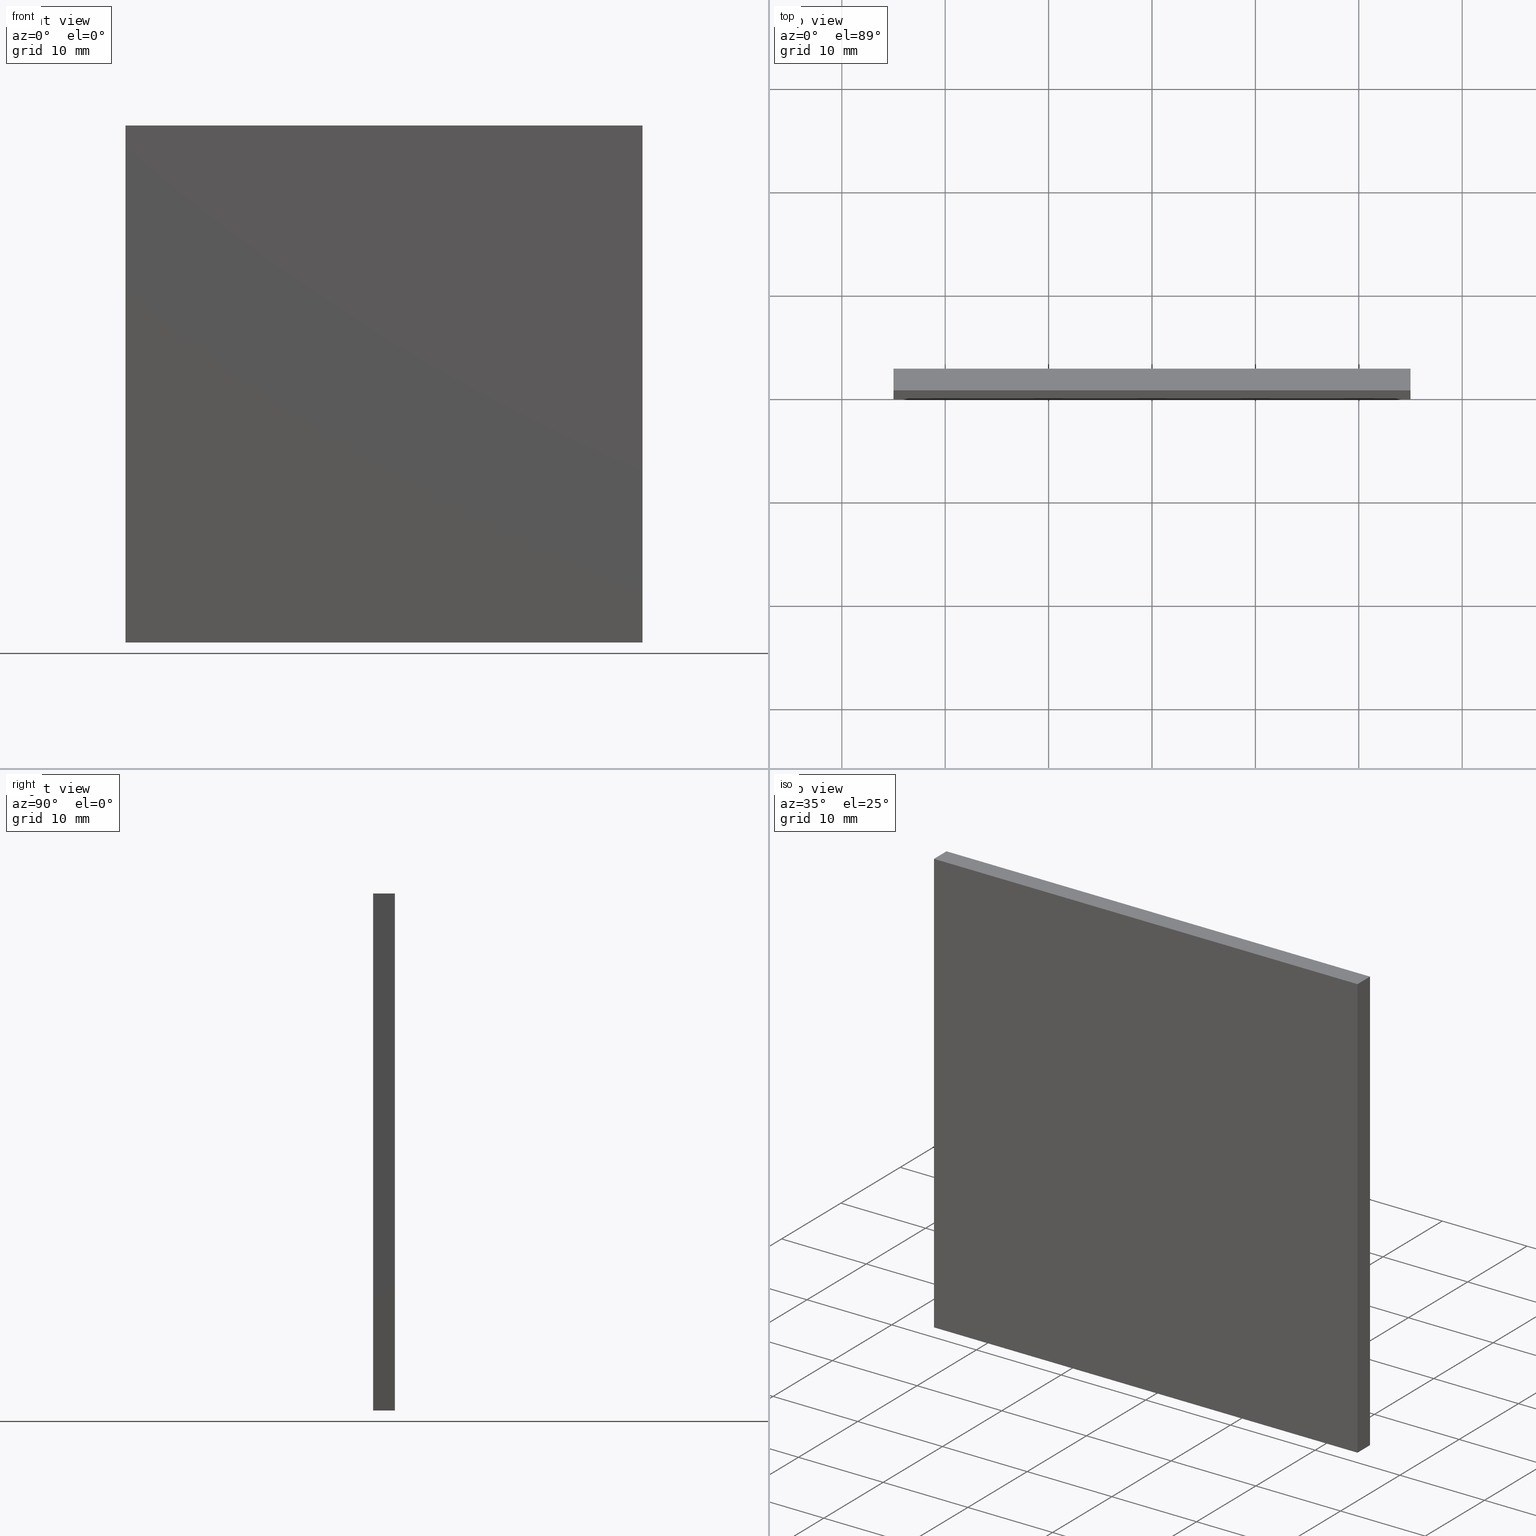
[diagram: canonical four-view strip — front | top / right | iso, engineering-drawing reading convention]
A machine part, canonical four-view strip (front | top / right | iso — engineering-drawing reading convention). The complete STEP part file that produces these views, byte-faithful:
ISO-10303-21;
HEADER;
FILE_DESCRIPTION (( 'STEP AP214' ),
    '1' );
FILE_NAME ('248614.STEP',
    '2019-08-06T06:35:41',
    ( 'user' ),
    ( '΢���й�' ),
    'SwSTEP 2.0',
    'SolidWorks 2016',
    '' );
FILE_SCHEMA (( 'AUTOMOTIVE_DESIGN' ));
ENDSEC;

DATA;
#1 = APPLICATION_CONTEXT ( 'automotive_design' ) ;
#2 = PRODUCT_DEFINITION_SHAPE ( 'NONE', 'NONE',  #8 ) ;
#3 = VECTOR ( 'NONE', #15, 1000.000000000000000 ) ;
#4 = ORIENTED_EDGE ( 'NONE', *, *, #66, .T. ) ;
#5 = CARTESIAN_POINT ( 'NONE',  ( 25.00000000000000400, 2.109999999999999900, -25.00000000000000400 ) ) ;
#6 = ADVANCED_FACE ( 'NONE', ( #193 ), #197, .F. ) ;
#7 =( GEOMETRIC_REPRESENTATION_CONTEXT ( 3 ) GLOBAL_UNCERTAINTY_ASSIGNED_CONTEXT ( ( #195 ) ) GLOBAL_UNIT_ASSIGNED_CONTEXT ( ( #33, #46, #199 ) ) REPRESENTATION_CONTEXT ( 'NONE', 'WORKASPACE' ) );
#8 = PRODUCT_DEFINITION ( 'δ֪', '', #53, #97 ) ;
#9 = EDGE_LOOP ( 'NONE', ( #19, #172, #88, #100 ) ) ;
#10 = VERTEX_POINT ( 'NONE', #183 ) ;
#11 = ORIENTED_EDGE ( 'NONE', *, *, #13, .F. ) ;
#12 = VECTOR ( 'NONE', #29, 1000.000000000000000 ) ;
#13 = EDGE_CURVE ( 'NONE', #49, #91, #129, .T. ) ;
#14 = CARTESIAN_POINT ( 'NONE',  ( -24.99999999999999600, 2.109999999999999900, -25.00000000000000400 ) ) ;
#15 = DIRECTION ( 'NONE',  ( -0.0000000000000000000, -1.000000000000000000, -0.0000000000000000000 ) ) ;
#16 = FACE_OUTER_BOUND ( 'NONE', #146, .T. ) ;
#17 = STYLED_ITEM ( 'NONE', ( #58 ), #190 ) ;
#18 = EDGE_CURVE ( 'NONE', #159, #41, #194, .T. ) ;
#19 = ORIENTED_EDGE ( 'NONE', *, *, #192, .T. ) ;
#20 = DIRECTION ( 'NONE',  ( 6.938893903907228400E-017, 0.0000000000000000000, 1.000000000000000000 ) ) ;
#21 = PRESENTATION_STYLE_ASSIGNMENT (( #148 ) ) ;
#22 = DIRECTION ( 'NONE',  ( -1.000000000000000000, -0.0000000000000000000, -0.0000000000000000000 ) ) ;
#23 = PLANE ( 'NONE',  #122 ) ;
#24 = EDGE_CURVE ( 'NONE', #105, #49, #35, .T. ) ;
#25 =( LENGTH_UNIT ( ) NAMED_UNIT ( * ) SI_UNIT ( .MILLI., .METRE. ) );
#26 = CARTESIAN_POINT ( 'NONE',  ( 25.00000000000001100, 2.109999999999999900, 24.99999999999999600 ) ) ;
#27 = CARTESIAN_POINT ( 'NONE',  ( 25.00000000000001100, 2.109999999999999900, 24.99999999999999600 ) ) ;
#28 = CARTESIAN_POINT ( 'NONE',  ( 25.00000000000000400, 0.0000000000000000000, -25.00000000000000400 ) ) ;
#29 = DIRECTION ( 'NONE',  ( -0.0000000000000000000, -1.000000000000000000, -0.0000000000000000000 ) ) ;
#30 = SURFACE_STYLE_FILL_AREA ( #153 ) ;
#31 = DIRECTION ( 'NONE',  ( -1.000000000000000000, -0.0000000000000000000, -0.0000000000000000000 ) ) ;
#32 = CARTESIAN_POINT ( 'NONE',  ( 0.0000000000000000000, 2.109999999999999900, 0.0000000000000000000 ) ) ;
#33 =( LENGTH_UNIT ( ) NAMED_UNIT ( * ) SI_UNIT ( .MILLI., .METRE. ) );
#34 = CARTESIAN_POINT ( 'NONE',  ( -24.99999999999999600, 2.109999999999999900, -25.00000000000000400 ) ) ;
#35 = LINE ( 'NONE', #128, #76 ) ;
#36 = VECTOR ( 'NONE', #120, 1000.000000000000000 ) ;
#37 = PRESENTATION_LAYER_ASSIGNMENT (  '', '', ( #17 ) ) ;
#38 = ORIENTED_EDGE ( 'NONE', *, *, #24, .F. ) ;
#39 = EDGE_CURVE ( 'NONE', #105, #159, #52, .T. ) ;
#40 = COLOUR_RGB ( '',1.000000000000000000, 1.000000000000000000, 1.000000000000000000 ) ;
#41 = VERTEX_POINT ( 'NONE', #141 ) ;
#42 = EDGE_LOOP ( 'NONE', ( #86, #125, #59, #165 ) ) ;
#43 = VECTOR ( 'NONE', #31, 1000.000000000000000 ) ;
#44 = EDGE_LOOP ( 'NONE', ( #137, #175, #38, #164 ) ) ;
#45 =( NAMED_UNIT ( * ) SI_UNIT ( $, .STERADIAN. ) SOLID_ANGLE_UNIT ( ) );
#46 =( NAMED_UNIT ( * ) PLANE_ANGLE_UNIT ( ) SI_UNIT ( $, .RADIAN. ) );
#47 = VERTEX_POINT ( 'NONE', #131 ) ;
#48 = PRODUCT_CONTEXT ( 'NONE', #96, 'mechanical' ) ;
#49 = VERTEX_POINT ( 'NONE', #92 ) ;
#50 = DIRECTION ( 'NONE',  ( 1.387778780781445700E-016, 0.0000000000000000000, 1.000000000000000000 ) ) ;
#51 = AXIS2_PLACEMENT_3D ( 'NONE', #170, #189, #102 ) ;
#52 = LINE ( 'NONE', #26, #3 ) ;
#53 = PRODUCT_DEFINITION_FORMATION_WITH_SPECIFIED_SOURCE ( '�κ�', '', #139, .NOT_KNOWN. ) ;
#54 = VECTOR ( 'NONE', #174, 1000.000000000000000 ) ;
#55 = ORIENTED_EDGE ( 'NONE', *, *, #72, .F. ) ;
#56 = ADVANCED_FACE ( 'NONE', ( #64 ), #155, .F. ) ;
#57 = EDGE_CURVE ( 'NONE', #91, #89, #103, .T. ) ;
#58 = PRESENTATION_STYLE_ASSIGNMENT (( #176 ) ) ;
#59 = ORIENTED_EDGE ( 'NONE', *, *, #66, .F. ) ;
#60 = AXIS2_PLACEMENT_3D ( 'NONE', #142, #65, #50 ) ;
#61 = VECTOR ( 'NONE', #79, 1000.000000000000000 ) ;
#62 = DIRECTION ( 'NONE',  ( 0.0000000000000000000, -0.0000000000000000000, 1.000000000000000000 ) ) ;
#63 = CARTESIAN_POINT ( 'NONE',  ( -24.99999999999999300, 2.109999999999999900, 24.99999999999999600 ) ) ;
#64 = FACE_OUTER_BOUND ( 'NONE', #114, .T. ) ;
#65 = DIRECTION ( 'NONE',  ( -1.000000000000000000, 0.0000000000000000000, 1.387778780781445700E-016 ) ) ;
#66 = EDGE_CURVE ( 'NONE', #89, #105, #166, .T. ) ;
#67 = FILL_AREA_STYLE_COLOUR ( '', #187 ) ;
#68 = CARTESIAN_POINT ( 'NONE',  ( 25.00000000000001100, 0.0000000000000000000, 24.99999999999999600 ) ) ;
#69 = ADVANCED_FACE ( 'NONE', ( #16 ), #85, .T. ) ;
#70 = AXIS2_PLACEMENT_3D ( 'NONE', #188, #81, #181 ) ;
#71 = DIRECTION ( 'NONE',  ( 0.0000000000000000000, 1.000000000000000000, 0.0000000000000000000 ) ) ;
#72 = EDGE_CURVE ( 'NONE', #10, #159, #126, .T. ) ;
#73 = APPLICATION_PROTOCOL_DEFINITION ( 'draft international standard', 'automotive_design', 1998, #1 ) ;
#74 = CARTESIAN_POINT ( 'NONE',  ( -24.99999999999999300, 0.0000000000000000000, 24.99999999999999600 ) ) ;
#75 = DIRECTION ( 'NONE',  ( -1.387778780781445700E-016, -0.0000000000000000000, -1.000000000000000000 ) ) ;
#76 = VECTOR ( 'NONE', #75, 1000.000000000000000 ) ;
#77 = SHAPE_DEFINITION_REPRESENTATION ( #2, #190 ) ;
#78 = SURFACE_SIDE_STYLE ('',( #80 ) ) ;
#79 = DIRECTION ( 'NONE',  ( 6.938893903907228400E-017, 0.0000000000000000000, 1.000000000000000000 ) ) ;
#80 = SURFACE_STYLE_FILL_AREA ( #115 ) ;
#81 = DIRECTION ( 'NONE',  ( 0.0000000000000000000, 0.0000000000000000000, 1.000000000000000000 ) ) ;
#82 = CLOSED_SHELL ( 'NONE', ( #6, #56, #135, #121, #69, #191 ) ) ;
#83 = CARTESIAN_POINT ( 'NONE',  ( -24.99999999999999600, 0.0000000000000000000, -25.00000000000000400 ) ) ;
#84 = VECTOR ( 'NONE', #202, 1000.000000000000000 ) ;
#85 = PLANE ( 'NONE',  #87 ) ;
#86 = ORIENTED_EDGE ( 'NONE', *, *, #72, .T. ) ;
#87 = AXIS2_PLACEMENT_3D ( 'NONE', #32, #71, #62 ) ;
#88 = ORIENTED_EDGE ( 'NONE', *, *, #57, .F. ) ;
#89 = VERTEX_POINT ( 'NONE', #63 ) ;
#90 = DIRECTION ( 'NONE',  ( 1.000000000000000000, 0.0000000000000000000, 0.0000000000000000000 ) ) ;
#91 = VERTEX_POINT ( 'NONE', #95 ) ;
#92 = CARTESIAN_POINT ( 'NONE',  ( 25.00000000000000400, 2.109999999999999900, -25.00000000000000400 ) ) ;
#93 = CARTESIAN_POINT ( 'NONE',  ( -24.99999999999999300, 2.109999999999999900, 24.99999999999999600 ) ) ;
#94 = LINE ( 'NONE', #93, #54 ) ;
#95 = CARTESIAN_POINT ( 'NONE',  ( -24.99999999999999600, 2.109999999999999900, -25.00000000000000400 ) ) ;
#96 = APPLICATION_CONTEXT ( 'automotive_design' ) ;
#97 = PRODUCT_DEFINITION_CONTEXT ( 'detailed design', #1, 'design' ) ;
#98 = DIRECTION ( 'NONE',  ( 1.000000000000000000, 0.0000000000000000000, -6.938893903907228400E-017 ) ) ;
#99 = EDGE_CURVE ( 'NONE', #91, #47, #167, .T. ) ;
#100 = ORIENTED_EDGE ( 'NONE', *, *, #99, .T. ) ;
#101 = CARTESIAN_POINT ( 'NONE',  ( -24.99999999999999600, 2.109999999999999900, -25.00000000000000400 ) ) ;
#102 = DIRECTION ( 'NONE',  ( 1.000000000000000000, 0.0000000000000000000, -0.0000000000000000000 ) ) ;
#103 = LINE ( 'NONE', #34, #112 ) ;
#104 = ORIENTED_EDGE ( 'NONE', *, *, #99, .F. ) ;
#105 = VERTEX_POINT ( 'NONE', #27 ) ;
#106 = FACE_OUTER_BOUND ( 'NONE', #42, .T. ) ;
#107 = ORIENTED_EDGE ( 'NONE', *, *, #177, .T. ) ;
#108 = FACE_OUTER_BOUND ( 'NONE', #158, .T. ) ;
#109 = AXIS2_PLACEMENT_3D ( 'NONE', #149, #98, #168 ) ;
#110 = CARTESIAN_POINT ( 'NONE',  ( -24.99999999999999300, 2.109999999999999900, 24.99999999999999600 ) ) ;
#111 = VECTOR ( 'NONE', #179, 1000.000000000000000 ) ;
#112 = VECTOR ( 'NONE', #20, 1000.000000000000000 ) ;
#113 = DIRECTION ( 'NONE',  ( 0.0000000000000000000, -0.0000000000000000000, 1.000000000000000000 ) ) ;
#114 = EDGE_LOOP ( 'NONE', ( #107, #104, #11, #182 ) ) ;
#115 = FILL_AREA_STYLE ('',( #67 ) ) ;
#116 = CARTESIAN_POINT ( 'NONE',  ( 0.0000000000000000000, 0.0000000000000000000, 0.0000000000000000000 ) ) ;
#117 = ORIENTED_EDGE ( 'NONE', *, *, #13, .T. ) ;
#118 = CARTESIAN_POINT ( 'NONE',  ( -24.99999999999999600, 0.0000000000000000000, -25.00000000000000400 ) ) ;
#119 = LINE ( 'NONE', #118, #43 ) ;
#120 = DIRECTION ( 'NONE',  ( 1.000000000000000000, 0.0000000000000000000, 0.0000000000000000000 ) ) ;
#121 = ADVANCED_FACE ( 'NONE', ( #106 ), #23, .F. ) ;
#122 = AXIS2_PLACEMENT_3D ( 'NONE', #140, #157, #198 ) ;
#123 = ORIENTED_EDGE ( 'NONE', *, *, #18, .F. ) ;
#124 = LINE ( 'NONE', #83, #61 ) ;
#125 = ORIENTED_EDGE ( 'NONE', *, *, #39, .F. ) ;
#126 = LINE ( 'NONE', #74, #161 ) ;
#127 = UNCERTAINTY_MEASURE_WITH_UNIT (LENGTH_MEASURE( 1.000000000000000100E-005 ), #25, 'distance_accuracy_value', 'NONE');
#128 = CARTESIAN_POINT ( 'NONE',  ( 25.00000000000000400, 2.109999999999999900, -25.00000000000000400 ) ) ;
#129 = LINE ( 'NONE', #14, #180 ) ;
#130 =( LENGTH_UNIT ( ) NAMED_UNIT ( * ) SI_UNIT ( .MILLI., .METRE. ) );
#131 = CARTESIAN_POINT ( 'NONE',  ( -24.99999999999999600, 0.0000000000000000000, -25.00000000000000400 ) ) ;
#132 = MANIFOLD_SOLID_BREP ( '͹̨-����1', #82 ) ;
#133 = STYLED_ITEM ( 'NONE', ( #21 ), #132 ) ;
#134 = EDGE_CURVE ( 'NONE', #49, #41, #136, .T. ) ;
#135 = ADVANCED_FACE ( 'NONE', ( #200 ), #145, .F. ) ;
#136 = LINE ( 'NONE', #5, #111 ) ;
#137 = ORIENTED_EDGE ( 'NONE', *, *, #18, .T. ) ;
#138 = ORIENTED_EDGE ( 'NONE', *, *, #24, .T. ) ;
#139 = PRODUCT ( '248614', '248614', '', ( #48 ) ) ;
#140 = CARTESIAN_POINT ( 'NONE',  ( -24.99999999999999300, 2.109999999999999900, 24.99999999999999600 ) ) ;
#141 = CARTESIAN_POINT ( 'NONE',  ( 25.00000000000000400, 0.0000000000000000000, -25.00000000000000400 ) ) ;
#142 = CARTESIAN_POINT ( 'NONE',  ( 25.00000000000000400, 2.109999999999999900, -25.00000000000000400 ) ) ;
#143 =( GEOMETRIC_REPRESENTATION_CONTEXT ( 3 ) GLOBAL_UNCERTAINTY_ASSIGNED_CONTEXT ( ( #163 ) ) GLOBAL_UNIT_ASSIGNED_CONTEXT ( ( #130, #171, #45 ) ) REPRESENTATION_CONTEXT ( 'NONE', 'WORKASPACE' ) );
#144 = ORIENTED_EDGE ( 'NONE', *, *, #57, .T. ) ;
#145 = PLANE ( 'NONE',  #109 ) ;
#146 = EDGE_LOOP ( 'NONE', ( #138, #117, #144, #4 ) ) ;
#147 = PRODUCT_RELATED_PRODUCT_CATEGORY ( 'part', '', ( #139 ) ) ;
#148 = SURFACE_STYLE_USAGE ( .BOTH. , #78 ) ;
#149 = CARTESIAN_POINT ( 'NONE',  ( -24.99999999999999600, 2.109999999999999900, -25.00000000000000400 ) ) ;
#150 = MECHANICAL_DESIGN_GEOMETRIC_PRESENTATION_REPRESENTATION (  '', ( #133 ), #7 ) ;
#151 = EDGE_CURVE ( 'NONE', #89, #10, #94, .T. ) ;
#152 = SURFACE_SIDE_STYLE ('',( #30 ) ) ;
#153 = FILL_AREA_STYLE ('',( #184 ) ) ;
#154 =( NAMED_UNIT ( * ) PLANE_ANGLE_UNIT ( ) SI_UNIT ( $, .RADIAN. ) );
#155 = PLANE ( 'NONE',  #51 ) ;
#156 = PRESENTATION_LAYER_ASSIGNMENT (  '', '', ( #133 ) ) ;
#157 = DIRECTION ( 'NONE',  ( 0.0000000000000000000, 0.0000000000000000000, -1.000000000000000000 ) ) ;
#158 = EDGE_LOOP ( 'NONE', ( #123, #55, #178, #169 ) ) ;
#159 = VERTEX_POINT ( 'NONE', #68 ) ;
#160 =( NAMED_UNIT ( * ) SI_UNIT ( $, .STERADIAN. ) SOLID_ANGLE_UNIT ( ) );
#161 = VECTOR ( 'NONE', #90, 1000.000000000000000 ) ;
#162 =( GEOMETRIC_REPRESENTATION_CONTEXT ( 3 ) GLOBAL_UNCERTAINTY_ASSIGNED_CONTEXT ( ( #127 ) ) GLOBAL_UNIT_ASSIGNED_CONTEXT ( ( #25, #154, #160 ) ) REPRESENTATION_CONTEXT ( 'NONE', 'WORKASPACE' ) );
#163 = UNCERTAINTY_MEASURE_WITH_UNIT (LENGTH_MEASURE( 1.000000000000000100E-005 ), #130, 'distance_accuracy_value', 'NONE');
#164 = ORIENTED_EDGE ( 'NONE', *, *, #39, .T. ) ;
#165 = ORIENTED_EDGE ( 'NONE', *, *, #151, .T. ) ;
#166 = LINE ( 'NONE', #110, #36 ) ;
#167 = LINE ( 'NONE', #101, #12 ) ;
#168 = DIRECTION ( 'NONE',  ( -6.938893903907228400E-017, 0.0000000000000000000, -1.000000000000000000 ) ) ;
#169 = ORIENTED_EDGE ( 'NONE', *, *, #177, .F. ) ;
#170 = CARTESIAN_POINT ( 'NONE',  ( -24.99999999999999600, 2.109999999999999900, -25.00000000000000400 ) ) ;
#171 =( NAMED_UNIT ( * ) PLANE_ANGLE_UNIT ( ) SI_UNIT ( $, .RADIAN. ) );
#172 = ORIENTED_EDGE ( 'NONE', *, *, #151, .F. ) ;
#173 = AXIS2_PLACEMENT_3D ( 'NONE', #116, #185, #113 ) ;
#174 = DIRECTION ( 'NONE',  ( -0.0000000000000000000, -1.000000000000000000, -0.0000000000000000000 ) ) ;
#175 = ORIENTED_EDGE ( 'NONE', *, *, #134, .F. ) ;
#176 = SURFACE_STYLE_USAGE ( .BOTH. , #152 ) ;
#177 = EDGE_CURVE ( 'NONE', #41, #47, #119, .T. ) ;
#178 = ORIENTED_EDGE ( 'NONE', *, *, #192, .F. ) ;
#179 = DIRECTION ( 'NONE',  ( -0.0000000000000000000, -1.000000000000000000, -0.0000000000000000000 ) ) ;
#180 = VECTOR ( 'NONE', #22, 1000.000000000000000 ) ;
#181 = DIRECTION ( 'NONE',  ( 1.000000000000000000, 0.0000000000000000000, 0.0000000000000000000 ) ) ;
#182 = ORIENTED_EDGE ( 'NONE', *, *, #134, .T. ) ;
#183 = CARTESIAN_POINT ( 'NONE',  ( -24.99999999999999300, 0.0000000000000000000, 24.99999999999999600 ) ) ;
#184 = FILL_AREA_STYLE_COLOUR ( '', #40 ) ;
#185 = DIRECTION ( 'NONE',  ( 0.0000000000000000000, 1.000000000000000000, 0.0000000000000000000 ) ) ;
#186 = PLANE ( 'NONE',  #173 ) ;
#187 = COLOUR_RGB ( '',1.000000000000000000, 1.000000000000000000, 1.000000000000000000 ) ;
#188 = CARTESIAN_POINT ( 'NONE',  ( 0.0000000000000000000, 0.0000000000000000000, 0.0000000000000000000 ) ) ;
#189 = DIRECTION ( 'NONE',  ( 0.0000000000000000000, 0.0000000000000000000, 1.000000000000000000 ) ) ;
#190 = ADVANCED_BREP_SHAPE_REPRESENTATION ( '248614', ( #132, #70 ), #143 ) ;
#191 = ADVANCED_FACE ( 'NONE', ( #108 ), #186, .F. ) ;
#192 = EDGE_CURVE ( 'NONE', #47, #10, #124, .T. ) ;
#193 = FACE_OUTER_BOUND ( 'NONE', #44, .T. ) ;
#194 = LINE ( 'NONE', #28, #84 ) ;
#195 = UNCERTAINTY_MEASURE_WITH_UNIT (LENGTH_MEASURE( 1.000000000000000100E-005 ), #33, 'distance_accuracy_value', 'NONE');
#196 = MECHANICAL_DESIGN_GEOMETRIC_PRESENTATION_REPRESENTATION (  '', ( #17 ), #162 ) ;
#197 = PLANE ( 'NONE',  #60 ) ;
#198 = DIRECTION ( 'NONE',  ( -1.000000000000000000, 0.0000000000000000000, -0.0000000000000000000 ) ) ;
#199 =( NAMED_UNIT ( * ) SI_UNIT ( $, .STERADIAN. ) SOLID_ANGLE_UNIT ( ) );
#200 = FACE_OUTER_BOUND ( 'NONE', #9, .T. ) ;
#201 = APPLICATION_PROTOCOL_DEFINITION ( 'draft international standard', 'automotive_design', 1998, #96 ) ;
#202 = DIRECTION ( 'NONE',  ( -1.387778780781445700E-016, -0.0000000000000000000, -1.000000000000000000 ) ) ;
ENDSEC;
END-ISO-10303-21;
